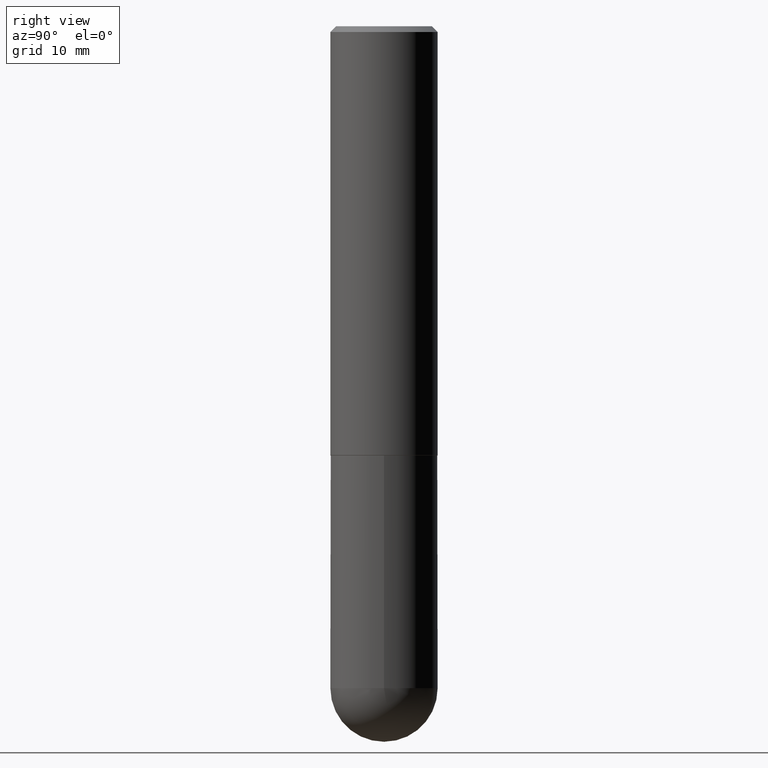
[diagram: clean part render]
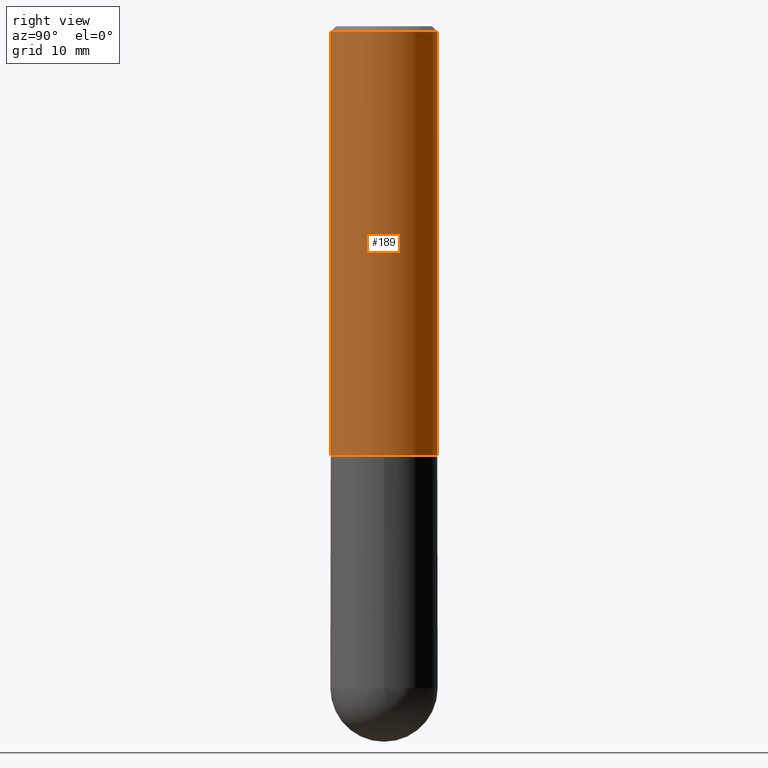
[diagram: same view with one face highlighted and labeled with its STEP entity id]
A machine part, right view. The second image highlights one B-rep face of the part: STEP entity #189.
In plain terms, the highlighted cylindrical surface (partial cylindrical patch) has radius 4.7625 mm, axis along (-0, 0, 1).
Its self-contained STEP definition (entity closure, byte-faithful):
#11 = CARTESIAN_POINT ( 'NONE',  ( 1.309305502066175205E-15, 0.1874999999999999167, -0.02000000000000069431 ) ) ;
#29 = DIRECTION ( 'NONE',  ( -6.982962677686266711E-15, -1.000000000000000000, 3.483106191921935949E-15 ) ) ;
#31 = AXIS2_PLACEMENT_3D ( 'NONE', #309, #228, #29 ) ;
#37 = DIRECTION ( 'NONE',  ( -2.445571982926080285E-29, 3.491333583877658817E-15, 1.000000000000000000 ) ) ;
#45 = LINE ( 'NONE', #169, #389 ) ;
#59 = VERTEX_POINT ( 'NONE', #365 ) ;
#62 = ORIENTED_EDGE ( 'NONE', *, *, #333, .F. ) ;
#86 = VERTEX_POINT ( 'NONE', #149 ) ;
#125 = FACE_OUTER_BOUND ( 'NONE', #299, .T. ) ;
#146 = VERTEX_POINT ( 'NONE', #343 ) ;
#149 = CARTESIAN_POINT ( 'NONE',  ( 1.332267629550206781E-15, 0.1874999999999949485, -1.499000000000000554 ) ) ;
#160 = DIRECTION ( 'NONE',  ( -6.982962677686266711E-15, -1.000000000000000000, 3.491333583877658817E-15 ) ) ;
#166 = AXIS2_PLACEMENT_3D ( 'NONE', #252, #37, #160 ) ;
#167 = CARTESIAN_POINT ( 'NONE',  ( 1.332267629550188243E-15, 0.1875000000000000833, -6.546250469770612993E-16 ) ) ;
#169 = CARTESIAN_POINT ( 'NONE',  ( -1.309305502066175600E-15, -0.1875000000000000833, 6.546250469770612993E-16 ) ) ;
#183 = EDGE_CURVE ( 'NONE', #146, #86, #256, .T. ) ;
#184 = CYLINDRICAL_SURFACE ( 'NONE', #166, 0.1875000000000000833 ) ;
#189 = ADVANCED_FACE ( 'NONE', ( #125 ), #184, .T. ) ;
#190 = DIRECTION ( 'NONE',  ( -2.445571982926080285E-29, 3.491333583877658817E-15, 1.000000000000000000 ) ) ;
#193 = CARTESIAN_POINT ( 'NONE',  ( 3.665912402406194899E-29, -5.233509042232610755E-15, -1.499000000000000110 ) ) ;
#202 = AXIS2_PLACEMENT_3D ( 'NONE', #193, #190, #312 ) ;
#210 = CIRCLE ( 'NONE', #31, 0.1874999999999999722 ) ;
#228 = DIRECTION ( 'NONE',  ( -2.445571982926080285E-29, 3.491333583877658817E-15, 1.000000000000000000 ) ) ;
#232 = LINE ( 'NONE', #167, #328 ) ;
#252 = CARTESIAN_POINT ( 'NONE',  ( 0.000000000000000000, 0.000000000000000000, 0.000000000000000000 ) ) ;
#256 = CIRCLE ( 'NONE', #202, 0.1875000000000001943 ) ;
#276 = EDGE_CURVE ( 'NONE', #86, #277, #232, .T. ) ;
#277 = VERTEX_POINT ( 'NONE', #11 ) ;
#292 = EDGE_CURVE ( 'NONE', #146, #59, #45, .T. ) ;
#294 = DIRECTION ( 'NONE',  ( -2.445571982926080285E-29, 3.491333583877658422E-15, 1.000000000000000000 ) ) ;
#297 = ORIENTED_EDGE ( 'NONE', *, *, #292, .F. ) ;
#299 = EDGE_LOOP ( 'NONE', ( #318, #392, #62, #297 ) ) ;
#309 = CARTESIAN_POINT ( 'NONE',  ( 4.891143965852170625E-31, -6.982667167755331735E-17, -0.02000000000000004205 ) ) ;
#312 = DIRECTION ( 'NONE',  ( -6.982962677686265922E-15, -1.000000000000000000, 2.913971193241877611E-15 ) ) ;
#318 = ORIENTED_EDGE ( 'NONE', *, *, #183, .T. ) ;
#323 = DIRECTION ( 'NONE',  ( -2.445571982926080285E-29, 3.491333583877658422E-15, 1.000000000000000000 ) ) ;
#328 = VECTOR ( 'NONE', #323, 39.37007874015748143 ) ;
#333 = EDGE_CURVE ( 'NONE', #59, #277, #210, .T. ) ;
#343 = CARTESIAN_POINT ( 'NONE',  ( -1.309305502066139509E-15, -0.1875000000000054123, -1.498999999999999444 ) ) ;
#365 = CARTESIAN_POINT ( 'NONE',  ( -1.286343374582161379E-15, -0.1875000000000000555, -0.01999999999999938979 ) ) ;
#389 = VECTOR ( 'NONE', #294, 39.37007874015748143 ) ;
#392 = ORIENTED_EDGE ( 'NONE', *, *, #276, .T. ) ;